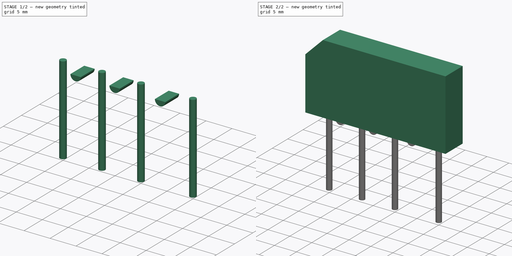
[diagram: build sequence overview — one tinted view per stage of 2, left to right]
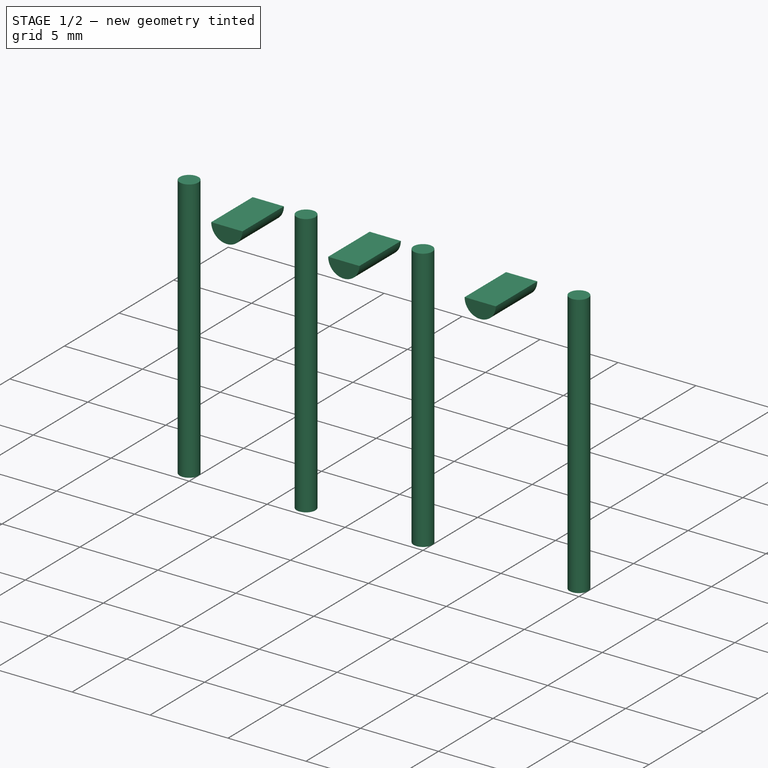
[diagram: stage 1 of 2 — iso view after this stage's code; geometry added in this stage tinted green]
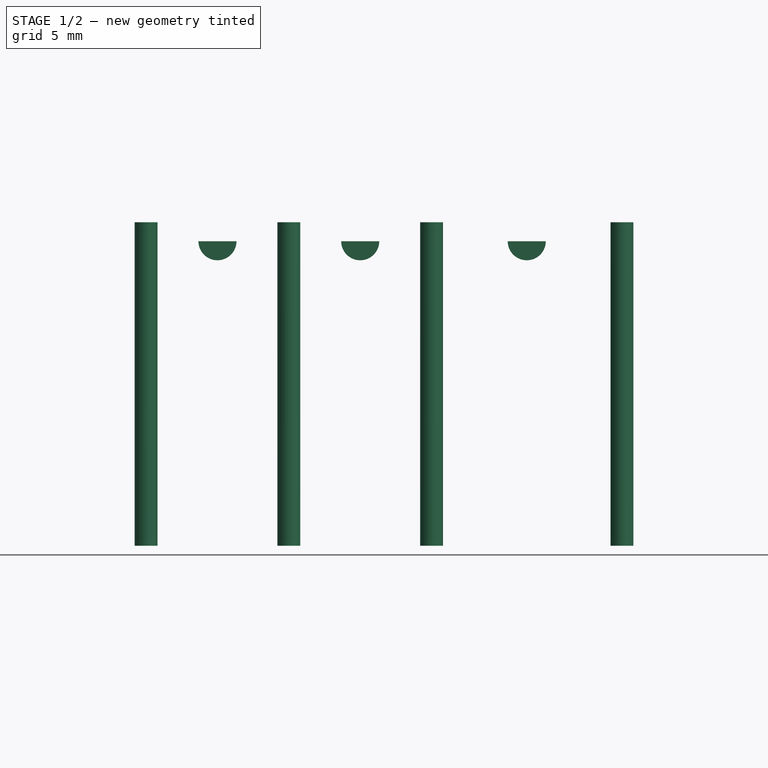
[diagram: stage 1 of 2 — front view after this stage's code; geometry added in this stage tinted green]
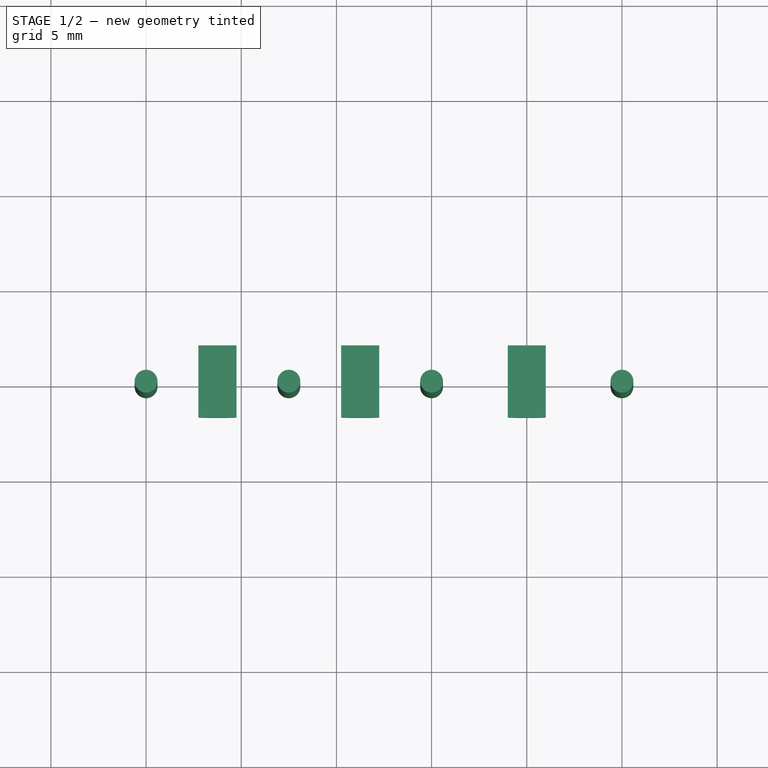
[diagram: stage 1 of 2 — top view after this stage's code; geometry added in this stage tinted green]
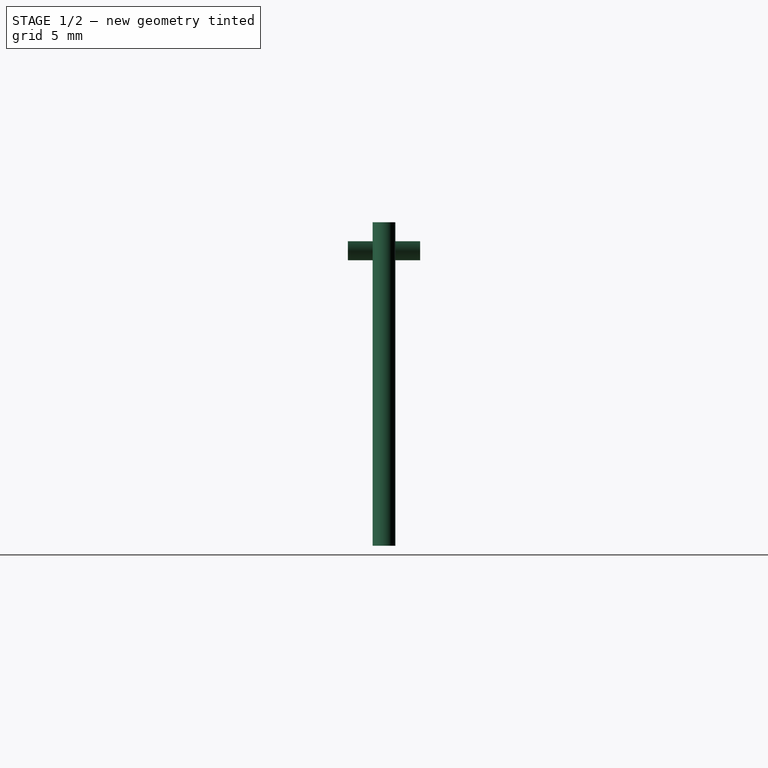
[diagram: stage 1 of 2 — right view after this stage's code; geometry added in this stage tinted green]
FCSTD DOCUMENT  (FreeCAD 0.16R6712 (Git))
Label: Diode_Bridge_32.0x5.6x17.0mm_P10.0mm_P7.5mm
License: All rights reserved
LicenseURL: http://en.wikipedia.org/wiki/All_rights_reserved
objects: Sketcher::SketchObject×3, Part::Feature×3, PartDesign::Pad×3, App::DocumentObjectGroup×1, Part::MultiFuse×1
note: 13 computed .brp shape members not serialized (recipe doc carries the construction recipe); baked Part::Feature solids carry a one-line shape summary decoded from their .brp

FEATURE [Sketcher::SketchObject] Sketch
  Placement = pos=(0,0,2) rot=(0,0,1;0rad)
  sketch-geometry (4):
    g0: Circle CenterX=0 CenterY=0 CenterZ=0 NormalX=0 NormalY=0 NormalZ=1 Radius=0.6
    g1: Circle CenterX=25 CenterY=0 CenterZ=0 NormalX=0 NormalY=0 NormalZ=1 Radius=0.6
    g2: Circle CenterX=7.5 CenterY=0 CenterZ=0 NormalX=0 NormalY=0 NormalZ=1 Radius=0.6
    g3: Circle CenterX=15 CenterY=0 CenterZ=0 NormalX=0 NormalY=0 NormalZ=1 Radius=0.6
  constraints (11):
    c: Coincident(g0,g-1)
    c: PointOnObject(g1,g-1)
    c: PointOnObject(g2,g-1)
    c: PointOnObject(g3,g-1)
    c: DistanceX(g3,g1) = 10
    c: DistanceX(g2,g3) = 7.5
    c: DistanceX(g-1,g2) = 7.5
    c: Equal(g2,g0)
    c: Equal(g0,g3)
    c: Equal(g3,g1)
    c: Radius(g1) = 0.6
FEATURE [PartDesign::Pad] Pad001
  Length = 17
  Length2 = 100
  Placement = pos=(0,0,2) rot=(0,0,1;0rad)
  Reversed = true
  Sketch = -> Sketch
  Type = 0
FEATURE [Sketcher::SketchObject] Sketch002
  Placement = pos=(0,0,0) rot=(1,0,0;1.5708rad)
  expr: Constraints[11] = 7.5 / 2
  expr: Constraints[13] = 7.5 / 2 + 10 / 2
  sketch-geometry (7):
    g0: ArcOfCircle CenterX=3.75 CenterY=1 CenterZ=0 NormalX=0 NormalY=0 NormalZ=1 Radius=1 StartAngle=3.14159 EndAngle=6.28319
    g1: LineSegment [constr] StartX=-3.42564 StartY=1 StartZ=0 EndX=32.0694 EndY=1 EndZ=0
    g2: ArcOfCircle CenterX=11.25 CenterY=1 CenterZ=0 NormalX=0 NormalY=0 NormalZ=1 Radius=1 StartAngle=3.14159 EndAngle=6.28319
    g3: ArcOfCircle CenterX=20 CenterY=1 CenterZ=0 NormalX=0 NormalY=0 NormalZ=1 Radius=1 StartAngle=3.14159 EndAngle=6.28319
    g4: LineSegment StartX=2.75 StartY=1 StartZ=0 EndX=4.75 EndY=1 EndZ=0
    g5: LineSegment StartX=10.25 StartY=1 StartZ=0 EndX=12.25 EndY=1 EndZ=0
    g6: LineSegment StartX=19 StartY=1 StartZ=0 EndX=21 EndY=1 EndZ=0
  constraints (23):
    c: Horizontal(g1)
    c: DistanceY(g-1,g1) = 1
    c: PointOnObject(g0,g1)
    c: PointOnObject(g0,g1)
    c: PointOnObject(g0,g1)
    c: PointOnObject(g2,g1)
    c: PointOnObject(g2,g1)
    c: PointOnObject(g2,g1)
    c: PointOnObject(g3,g1)
    c: PointOnObject(g3,g1)
    c: PointOnObject(g3,g1)
    c: DistanceX(g-1,g0) = 3.75
    c: DistanceX(g0,g2) = 7.5
    c: DistanceX(g2,g3) = 8.75
    c: Equal(g3,g2)
    c: Equal(g2,g0)
    c: Coincident(g4,g0)
    c: Coincident(g4,g0)
    c: Coincident(g5,g2)
    c: Coincident(g5,g2)
    c: Coincident(g6,g3)
    c: Coincident(g6,g3)
    c: Radius(g3) = 1
FEATURE [PartDesign::Pad] Pad002
  Length = 3.8
  Length2 = 100
  Midplane = true
  Placement = pos=(0,0,0) rot=(1,0,0;1.5708rad)
  Sketch = -> Sketch002
  Type = 0
  expr: Length = 3.8
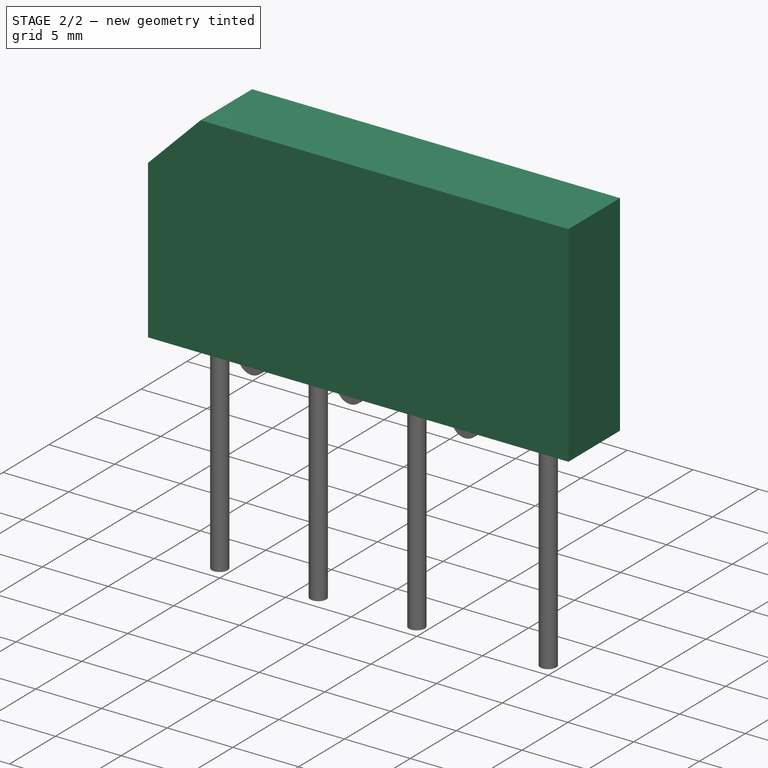
[diagram: stage 2 of 2 — iso view after this stage's code; geometry added in this stage tinted green]
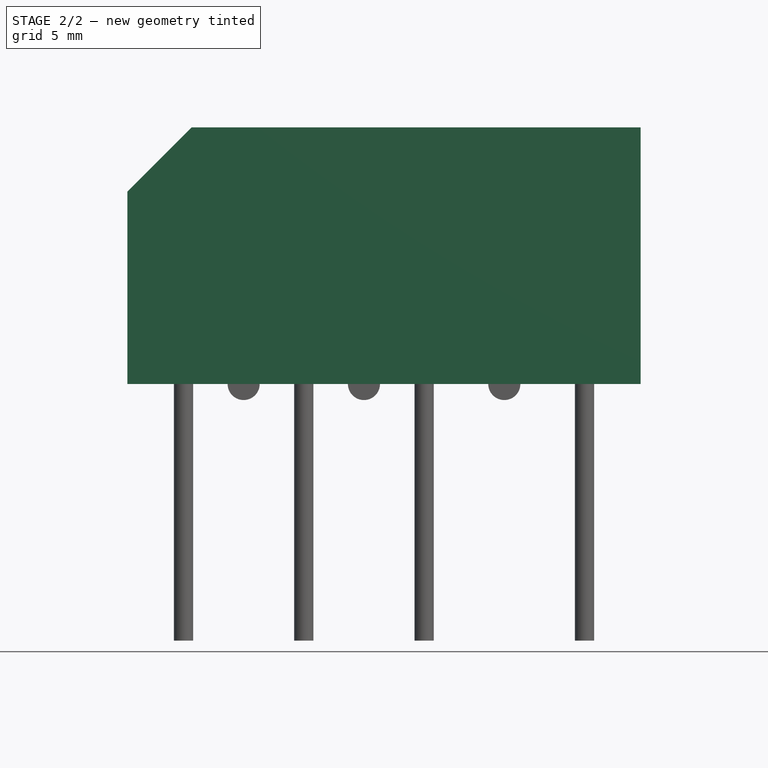
[diagram: stage 2 of 2 — front view after this stage's code; geometry added in this stage tinted green]
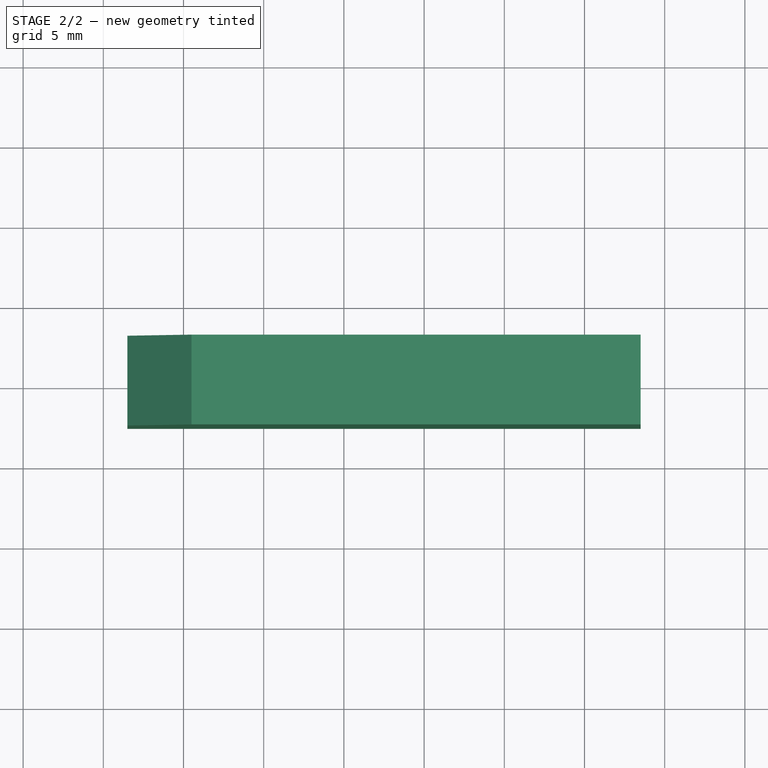
[diagram: stage 2 of 2 — top view after this stage's code; geometry added in this stage tinted green]
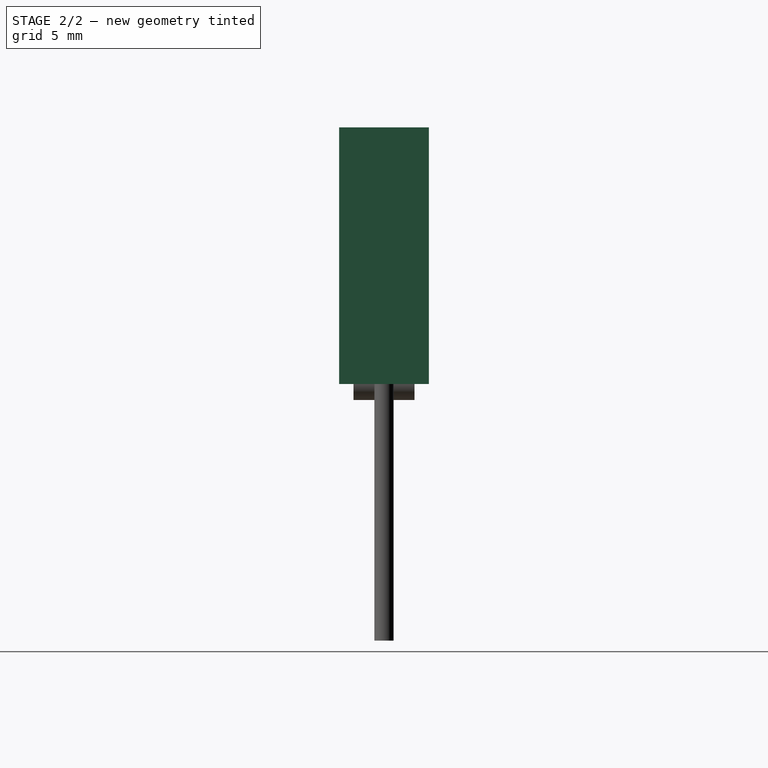
[diagram: stage 2 of 2 — right view after this stage's code; geometry added in this stage tinted green]
FEATURE [Sketcher::SketchObject] Sketch001
  Placement = pos=(0,0,0) rot=(1,0,0;1.5708rad)
  expr: Constraints[16] = (32 - 25) / 2
  sketch-geometry (5):
    g0: LineSegment StartX=28.5 StartY=1 StartZ=0 EndX=28.5 EndY=17 EndZ=0
    g1: LineSegment StartX=28.5 StartY=17 StartZ=0 EndX=0.5 EndY=17 EndZ=0
    g2: LineSegment StartX=-3.5 StartY=13 StartZ=0 EndX=-3.5 EndY=1 EndZ=0
    g3: LineSegment StartX=-3.5 StartY=1 StartZ=0 EndX=28.5 EndY=1 EndZ=0
    g4: LineSegment StartX=-3.5 StartY=13 StartZ=0 EndX=0.5 EndY=17 EndZ=0
  constraints (17):
    c: Vertical(g0)
    c: Horizontal(g1)
    c: Vertical(g2)
    c: DistanceX(g2,g0) = 32
    c: Horizontal(g3)
    c: Coincident(g2,g3)
    c: Coincident(g0,g3)
    c: DistanceY(g2,g1) = 16
    c: DistanceY(g-1,g0) = 1
    c: Coincident(g0,g1)
    c: PointOnObject(g4,g2)
    c: PointOnObject(g4,g1)
    c: Coincident(g1,g4)
    c: Coincident(g2,g4)
    c: DistanceY(g4,g4) = 4
    c: Angle(g4,g1) = 2.35619
    c: DistanceX(g2,g-1) = 3.5
FEATURE [Part::Feature] FusionAxisZ1  label="Z"
  shape: bbox 0.8 x 0.8 x 14 mm, 8 faces (baked)
FEATURE [Part::Feature] FusionAxisY1  label="Y"
  Placement = pos=(0,0,0.05) rot=(-1,0,0;1.5708rad)
  shape: bbox 0.8 x 14 x 0.8 mm, 8 faces (baked)
FEATURE [Part::Feature] FusionAxisX1  label="X"
  Placement = pos=(0,-0.05,0) rot=(0,1,0;1.5708rad)
  shape: bbox 14 x 0.8 x 0.8 mm, 8 faces (baked)
FEATURE [App::DocumentObjectGroup] axis
  Group = -> [FusionAxisZ1,FusionAxisY1,FusionAxisX1]
FEATURE [PartDesign::Pad] Pad
  Length = 5.6
  Length2 = 100
  Midplane = true
  Placement = pos=(0,0,0) rot=(1,0,0;1.5708rad)
  Sketch = -> Sketch001
  Type = 0
FEATURE [Part::MultiFuse] Pad_mp_cp  label="Diode_Bridge_32.0x5.6x17.0mm_P10.0mm_P7.5mm"
  Shapes = -> [Pad,Pad001,Pad002]
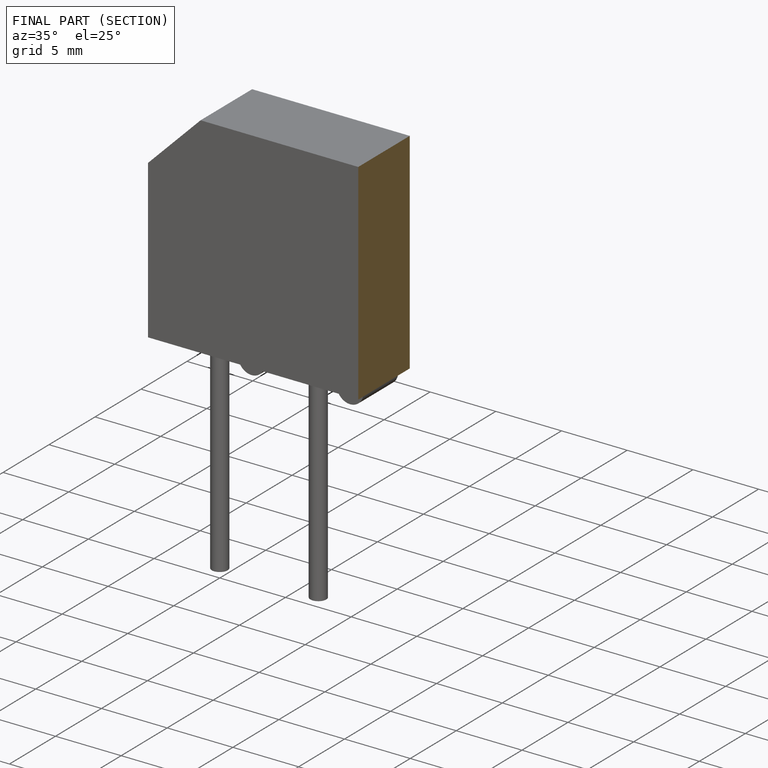
[diagram: finished part — half-section view (interior)]
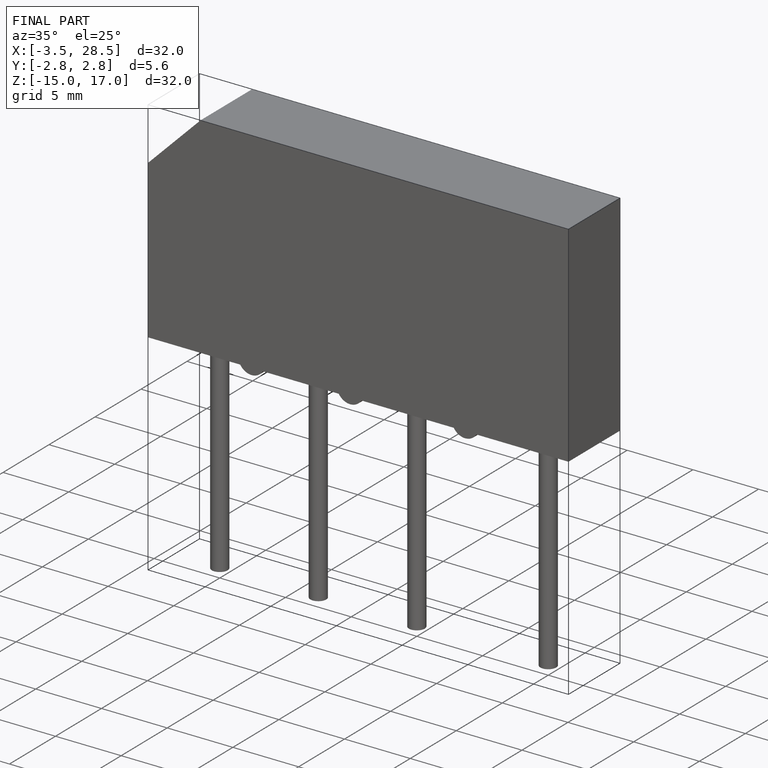
[diagram: finished part — iso view with bounding-box wireframe]
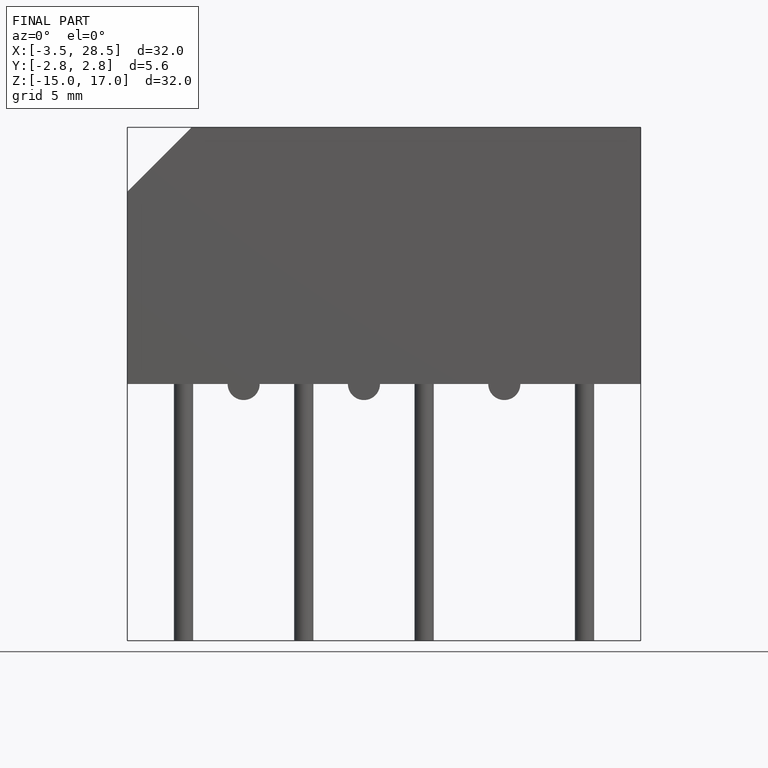
[diagram: finished part — front view with bounding-box wireframe]
